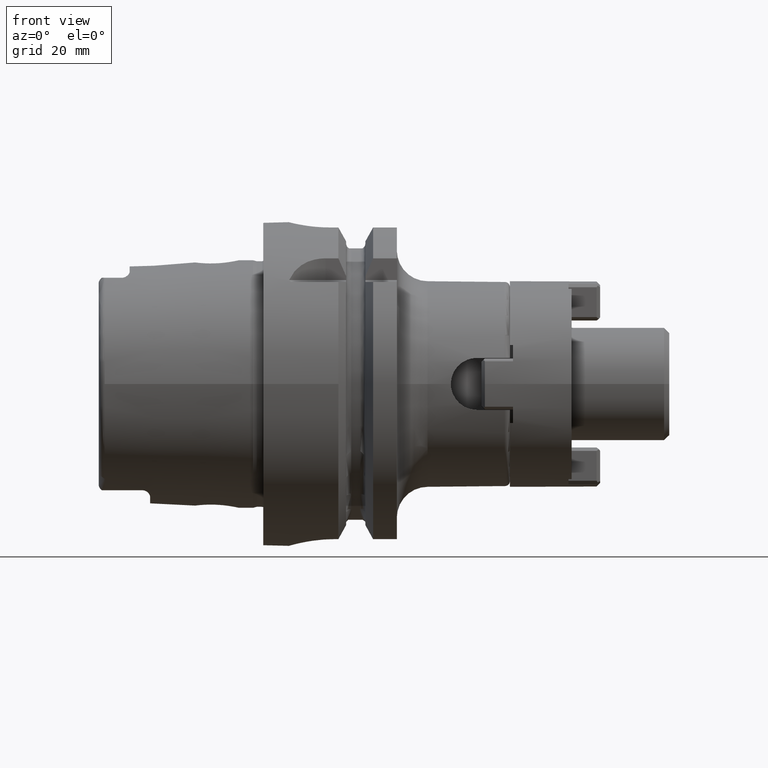
[diagram: clean part render]
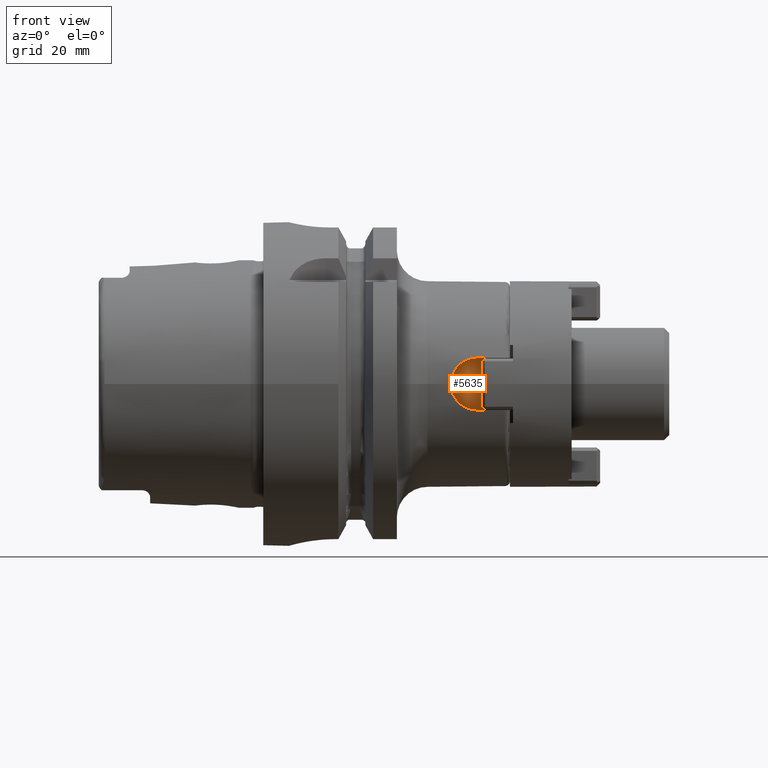
[diagram: same view with one face highlighted and labeled with its STEP entity id]
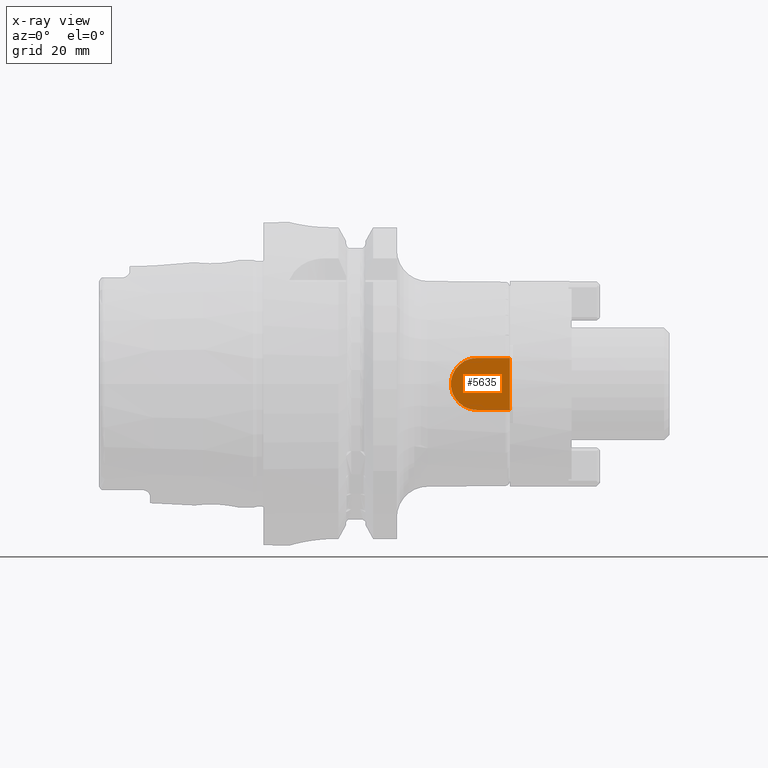
[diagram: x-ray of the same camera — body ghosted, the highlighted face saturated]
A machine part, front view. The second image highlights one B-rep face of the part: STEP entity #5635.
The next image is the same camera in x-ray: the body ghosted, the highlighted face saturated — about 0% of this face is hidden behind the body in this view.
In plain terms, the highlighted planar face has unit normal (0, 1, 0).
Its self-contained STEP definition (entity closure, byte-faithful):
#2020=DIRECTION('',(1.E0,0.E0,0.E0));
#2021=VECTOR('',#2020,6.45E0);
#2022=CARTESIAN_POINT('',(4.155E1,-1.125E1,5.05E0));
#2023=LINE('',#2022,#2021);
#2024=DIRECTION('',(-1.E0,0.E0,0.E0));
#2025=VECTOR('',#2024,6.45E0);
#2026=CARTESIAN_POINT('',(4.8E1,-1.125E1,-5.05E0));
#2027=LINE('',#2026,#2025);
#2028=CARTESIAN_POINT('',(4.155E1,-1.125E1,0.E0));
#2029=DIRECTION('',(0.E0,1.E0,0.E0));
#2030=DIRECTION('',(0.E0,0.E0,-1.E0));
#2031=AXIS2_PLACEMENT_3D('',#2028,#2029,#2030);
#2109=DIRECTION('',(0.E0,0.E0,-1.E0));
#2110=VECTOR('',#2109,1.01E1);
#2111=CARTESIAN_POINT('',(4.8E1,-1.125E1,5.05E0));
#2112=LINE('',#2111,#2110);
#3421=CARTESIAN_POINT('',(4.155E1,-1.125E1,-5.05E0));
#3422=CARTESIAN_POINT('',(4.155E1,-1.125E1,5.05E0));
#3423=VERTEX_POINT('',#3421);
#3424=VERTEX_POINT('',#3422);
#3425=CARTESIAN_POINT('',(4.8E1,-1.125E1,5.05E0));
#3426=VERTEX_POINT('',#3425);
#3427=CARTESIAN_POINT('',(4.8E1,-1.125E1,-5.05E0));
#3428=VERTEX_POINT('',#3427);
#5622=CARTESIAN_POINT('',(4.8E1,-1.125E1,0.E0));
#5623=DIRECTION('',(0.E0,1.E0,0.E0));
#5624=DIRECTION('',(1.E0,0.E0,0.E0));
#5625=AXIS2_PLACEMENT_3D('',#5622,#5623,#5624);
#5626=PLANE('',#5625);
#5628=ORIENTED_EDGE('',*,*,#5627,.T.);
#5630=ORIENTED_EDGE('',*,*,#5629,.T.);
#5631=ORIENTED_EDGE('',*,*,#5610,.T.);
#5632=ORIENTED_EDGE('',*,*,#5600,.T.);
#5633=EDGE_LOOP('',(#5628,#5630,#5631,#5632));
#5634=FACE_OUTER_BOUND('',#5633,.F.);
#5635=ADVANCED_FACE('',(#5634),#5626,.F.);
#2032=CIRCLE('',#2031,5.05E0);
#5600=EDGE_CURVE('',#3423,#3424,#2032,.T.);
#5610=EDGE_CURVE('',#3428,#3423,#2027,.T.);
#5627=EDGE_CURVE('',#3424,#3426,#2023,.T.);
#5629=EDGE_CURVE('',#3426,#3428,#2112,.T.);